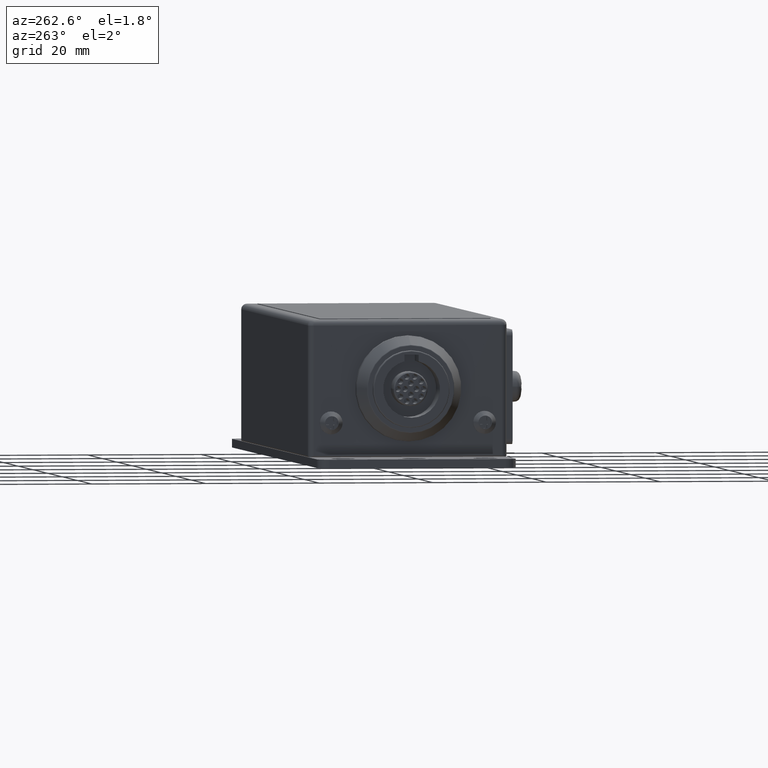
[diagram: clean part render]
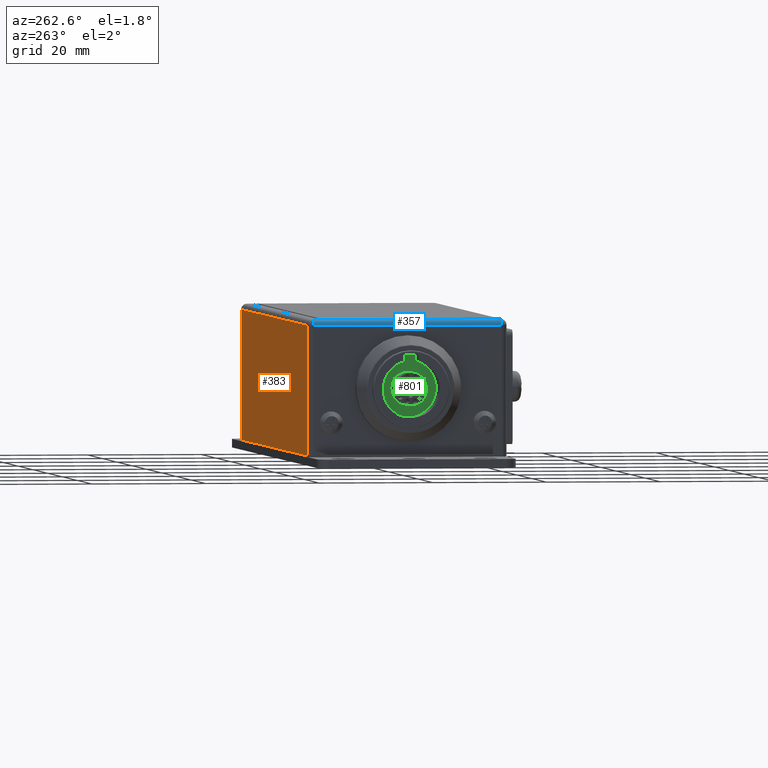
[diagram: same view with three faces highlighted in distinct colors, each labeled with its STEP entity id]
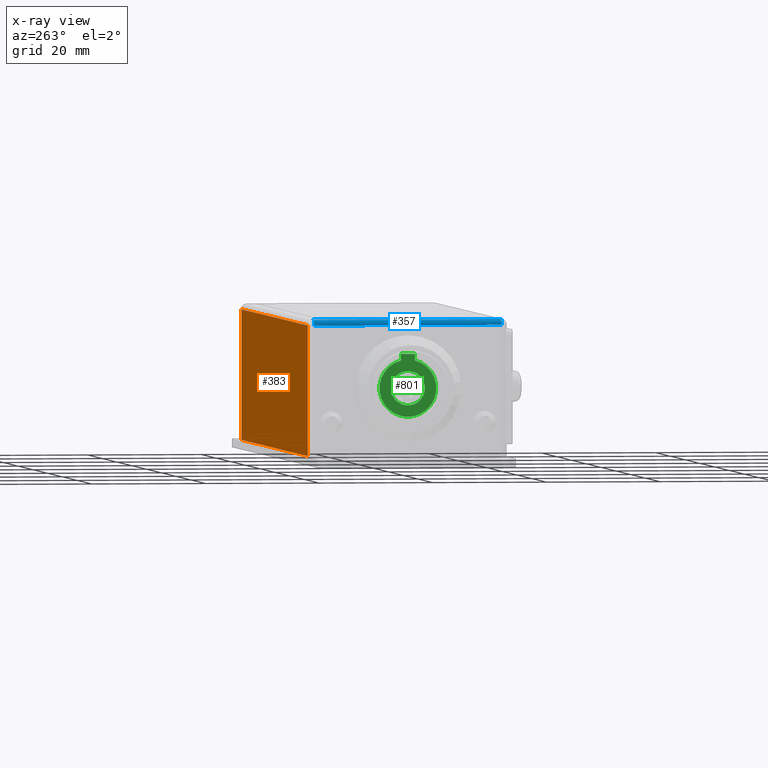
[diagram: x-ray of the same camera — body ghosted, the three highlighted faces saturated]
A machine part, auxiliary view with three faces highlighted in distinct colors.
The next image is the same camera in x-ray (body ghosted, the three faces saturated) — at least one of them is partly hidden behind the body in this view.
Their STEP definitions:

[orange] entity #383 — the highlighted planar face has unit normal (0, -1, -0).
#383 = ADVANCED_FACE( '', ( #1071 ), #1072, .F. );
#1071 = FACE_OUTER_BOUND( '', #2192, .T. );
#1072 = PLANE( '', #2193 );
#2192 = EDGE_LOOP( '', ( #3394, #3395, #3396, #3397 ) );
#2193 = AXIS2_PLACEMENT_3D( '', #3398, #3399, #3400 );
#3394 = ORIENTED_EDGE( '', *, *, #5981, .T. );
#3395 = ORIENTED_EDGE( '', *, *, #5982, .T. );
#3396 = ORIENTED_EDGE( '', *, *, #5918, .T. );
#3397 = ORIENTED_EDGE( '', *, *, #5983, .T. );
#3398 = CARTESIAN_POINT( '', ( -46.0000000000001, 17.5000000000000, -24.0000000000000 ) );
#3399 = DIRECTION( '', ( 0.000000000000000, -1.00000000000000, -0.000000000000000 ) );
#3400 = DIRECTION( '', ( -1.00000000000000, 0.000000000000000, -0.000000000000000 ) );
#5918 = EDGE_CURVE( '', #6939, #6940, #6941, .T. );
#5981 = EDGE_CURVE( '', #7053, #7054, #7055, .T. );
#5982 = EDGE_CURVE( '', #7054, #6939, #7056, .F. );
#5983 = EDGE_CURVE( '', #6940, #7053, #7057, .T. );
#6939 = VERTEX_POINT( '', #8433 );
#6940 = VERTEX_POINT( '', #8434 );
#6941 = LINE( '', #8435, #8436 );
#7053 = VERTEX_POINT( '', #8582 );
#7054 = VERTEX_POINT( '', #8583 );
#7055 = LINE( '', #8584, #8585 );
#7056 = LINE( '', #8586, #8587 );
#7057 = LINE( '', #8588, #8589 );
#8433 = CARTESIAN_POINT( '', ( 44.9999999999999, 17.5000000000000, -23.8000000000000 ) );
#8434 = CARTESIAN_POINT( '', ( -45.0000000000001, 17.5000000000000, -23.8000000000000 ) );
#8435 = CARTESIAN_POINT( '', ( -46.0000000000001, 17.5000000000000, -23.8000000000000 ) );
#8436 = VECTOR( '', #10368, 1000.00000000000 );
#8582 = CARTESIAN_POINT( '', ( -45.0000000000001, 17.5000000000000, -1.00000000000000 ) );
#8583 = CARTESIAN_POINT( '', ( 44.9999999999999, 17.5000000000000, -1.00000000000000 ) );
#8584 = CARTESIAN_POINT( '', ( -46.0000000000001, 17.5000000000000, -1.00000000000000 ) );
#8585 = VECTOR( '', #10454, 1000.00000000000 );
#8586 = CARTESIAN_POINT( '', ( 44.9999999999999, 17.5000000000000, -24.0000000000000 ) );
#8587 = VECTOR( '', #10455, 1000.00000000000 );
#8588 = CARTESIAN_POINT( '', ( -45.0000000000001, 17.5000000000000, -24.0000000000000 ) );
#8589 = VECTOR( '', #10456, 1000.00000000000 );
#10368 = DIRECTION( '', ( -1.00000000000000, 0.000000000000000, 0.000000000000000 ) );
#10454 = DIRECTION( '', ( 1.00000000000000, 0.000000000000000, 0.000000000000000 ) );
#10455 = DIRECTION( '', ( 0.000000000000000, 0.000000000000000, 1.00000000000000 ) );
#10456 = DIRECTION( '', ( -0.000000000000000, 0.000000000000000, 1.00000000000000 ) );

[blue] entity #357 — the highlighted cylindrical surface (edge-blend (fillet) strip) has radius 1 mm, axis along (0, -1, -0).
#357 = ADVANCED_FACE( '', ( #1028 ), #1029, .T. );
#1028 = FACE_OUTER_BOUND( '', #2149, .T. );
#1029 = CYLINDRICAL_SURFACE( '', #2150, 1.00000000000000 );
#2149 = EDGE_LOOP( '', ( #3280, #3281, #3282, #3283 ) );
#2150 = AXIS2_PLACEMENT_3D( '', #3284, #3285, #3286 );
#3280 = ORIENTED_EDGE( '', *, *, #5907, .F. );
#3281 = ORIENTED_EDGE( '', *, *, #5908, .T. );
#3282 = ORIENTED_EDGE( '', *, *, #5909, .F. );
#3283 = ORIENTED_EDGE( '', *, *, #5910, .T. );
#3284 = CARTESIAN_POINT( '', ( -45.0000000000001, -17.5000000000000, -1.00000000000000 ) );
#3285 = DIRECTION( '', ( 0.000000000000000, -1.00000000000000, -0.000000000000000 ) );
#3286 = DIRECTION( '', ( 0.000000000000000, -0.000000000000000, 1.00000000000000 ) );
#5907 = EDGE_CURVE( '', #6919, #6920, #6921, .F. );
#5908 = EDGE_CURVE( '', #6919, #6922, #6923, .F. );
#5909 = EDGE_CURVE( '', #6924, #6922, #6925, .T. );
#5910 = EDGE_CURVE( '', #6924, #6920, #6926, .T. );
#6919 = VERTEX_POINT( '', #8409 );
#6920 = VERTEX_POINT( '', #8410 );
#6921 = LINE( '', #8411, #8412 );
#6922 = VERTEX_POINT( '', #8413 );
#6923 = CIRCLE( '', #8414, 1.00000000000000 );
#6924 = VERTEX_POINT( '', #8415 );
#6925 = LINE( '', #8416, #8417 );
#6926 = CIRCLE( '', #8418, 1.00000000000000 );
#8409 = CARTESIAN_POINT( '', ( -45.0000000000001, 16.5000000000000, 0.000000000000000 ) );
#8410 = CARTESIAN_POINT( '', ( -45.0000000000001, -16.5000000000000, 0.000000000000000 ) );
#8411 = CARTESIAN_POINT( '', ( -45.0000000000001, 17.5000000000000, 0.000000000000000 ) );
#8412 = VECTOR( '', #10349, 1000.00000000000 );
#8413 = CARTESIAN_POINT( '', ( -46.0000000000001, 16.5000000000000, -1.00000000000000 ) );
#8414 = AXIS2_PLACEMENT_3D( '', #10350, #10351, #10352 );
#8415 = CARTESIAN_POINT( '', ( -46.0000000000001, -16.5000000000000, -1.00000000000000 ) );
#8416 = CARTESIAN_POINT( '', ( -46.0000000000001, -17.5000000000000, -1.00000000000000 ) );
#8417 = VECTOR( '', #10353, 1000.00000000000 );
#8418 = AXIS2_PLACEMENT_3D( '', #10354, #10355, #10356 );
#10349 = DIRECTION( '', ( 0.000000000000000, 1.00000000000000, 0.000000000000000 ) );
#10350 = CARTESIAN_POINT( '', ( -45.0000000000001, 16.5000000000000, -1.00000000000000 ) );
#10351 = DIRECTION( '', ( -0.000000000000000, 1.00000000000000, 0.000000000000000 ) );
#10352 = DIRECTION( '', ( 0.000000000000000, -0.000000000000000, 1.00000000000000 ) );
#10353 = DIRECTION( '', ( -0.000000000000000, 1.00000000000000, 0.000000000000000 ) );
#10354 = CARTESIAN_POINT( '', ( -45.0000000000001, -16.5000000000000, -1.00000000000000 ) );
#10355 = DIRECTION( '', ( -0.000000000000000, 1.00000000000000, 0.000000000000000 ) );
#10356 = DIRECTION( '', ( 0.000000000000000, -0.000000000000000, 1.00000000000000 ) );

[green] entity #801 — the highlighted planar face has unit normal (1, 0, 0).
#801 = ADVANCED_FACE( '', ( #1782, #1783 ), #1784, .F. );
#1782 = FACE_BOUND( '', #2903, .T. );
#1783 = FACE_OUTER_BOUND( '', #2904, .T. );
#1784 = PLANE( '', #2905 );
#2903 = EDGE_LOOP( '', ( #5103 ) );
#2904 = EDGE_LOOP( '', ( #5104, #5105, #5106, #5107 ) );
#2905 = AXIS2_PLACEMENT_3D( '', #5108, #5109, #5110 );
#5103 = ORIENTED_EDGE( '', *, *, #6733, .F. );
#5104 = ORIENTED_EDGE( '', *, *, #6731, .F. );
#5105 = ORIENTED_EDGE( '', *, *, #6463, .F. );
#5106 = ORIENTED_EDGE( '', *, *, #6516, .F. );
#5107 = ORIENTED_EDGE( '', *, *, #6138, .F. );
#5108 = CARTESIAN_POINT( '', ( -46.0000000000001, -17.5000000000000, -24.0000000000000 ) );
#5109 = DIRECTION( '', ( 1.00000000000000, 0.000000000000000, 0.000000000000000 ) );
#5110 = DIRECTION( '', ( 0.000000000000000, -1.00000000000000, 0.000000000000000 ) );
#6138 = EDGE_CURVE( '', #7319, #7321, #7322, .T. );
#6463 = EDGE_CURVE( '', #7838, #7840, #7841, .T. );
#6516 = EDGE_CURVE( '', #7321, #7838, #7914, .F. );
#6731 = EDGE_CURVE( '', #7840, #7319, #8194, .T. );
#6733 = EDGE_CURVE( '', #8196, #8196, #8197, .T. );
#7319 = VERTEX_POINT( '', #8936 );
#7321 = VERTEX_POINT( '', #8939 );
#7322 = LINE( '', #8940, #8941 );
#7838 = VERTEX_POINT( '', #9618 );
#7840 = VERTEX_POINT( '', #9621 );
#7841 = LINE( '', #9622, #9623 );
#7914 = CIRCLE( '', #9726, 4.99999999999999 );
#8194 = LINE( '', #10094, #10095 );
#8196 = VERTEX_POINT( '', #10097 );
#8197 = CIRCLE( '', #10098, 3.00000000000000 );
#8936 = CARTESIAN_POINT( '', ( -46.0000000000000, -1.25000000000003, -5.99999999999997 ) );
#8939 = CARTESIAN_POINT( '', ( -46.0000000000000, -1.25000000000003, -7.15877081724070 ) );
#8940 = CARTESIAN_POINT( '', ( -46.0000000000000, -1.25000000000003, -12.0000000000000 ) );
#8941 = VECTOR( '', #10691, 1000.00000000000 );
#9618 = CARTESIAN_POINT( '', ( -46.0000000000000, 1.24999999999997, -7.15877081724072 ) );
#9621 = CARTESIAN_POINT( '', ( -46.0000000000001, 1.24999999999997, -5.99999999999997 ) );
#9622 = CARTESIAN_POINT( '', ( -46.0000000000000, 1.24999999999997, -12.0000000000000 ) );
#9623 = VECTOR( '', #11110, 1000.00000000000 );
#9726 = AXIS2_PLACEMENT_3D( '', #11166, #11167, #11168 );
#10094 = CARTESIAN_POINT( '', ( -46.0000000000000, -5.86736334431265E-015, -5.99999999999997 ) );
#10095 = VECTOR( '', #11429, 1000.00000000000 );
#10097 = CARTESIAN_POINT( '', ( -46.0000000000000, 2.99999999999995, -12.0000000000000 ) );
#10098 = AXIS2_PLACEMENT_3D( '', #11430, #11431, #11432 );
#10691 = DIRECTION( '', ( 0.000000000000000, 0.000000000000000, -1.00000000000000 ) );
#11110 = DIRECTION( '', ( 0.000000000000000, 0.000000000000000, 1.00000000000000 ) );
#11166 = CARTESIAN_POINT( '', ( -46.0000000000000, -5.44396206716632E-014, -12.0000000000000 ) );
#11167 = DIRECTION( '', ( -1.00000000000000, 6.12303176911189E-017, 0.000000000000000 ) );
#11168 = DIRECTION( '', ( 0.000000000000000, 0.000000000000000, 1.00000000000000 ) );
#11429 = DIRECTION( '', ( -6.12303176911189E-017, -1.00000000000000, 0.000000000000000 ) );
#11430 = CARTESIAN_POINT( '', ( -46.0000000000000, -5.44396206716632E-014, -12.0000000000000 ) );
#11431 = DIRECTION( '', ( -1.00000000000000, 6.12303176911189E-017, 0.000000000000000 ) );
#11432 = DIRECTION( '', ( 6.12303176911189E-017, 1.00000000000000, 0.000000000000000 ) );